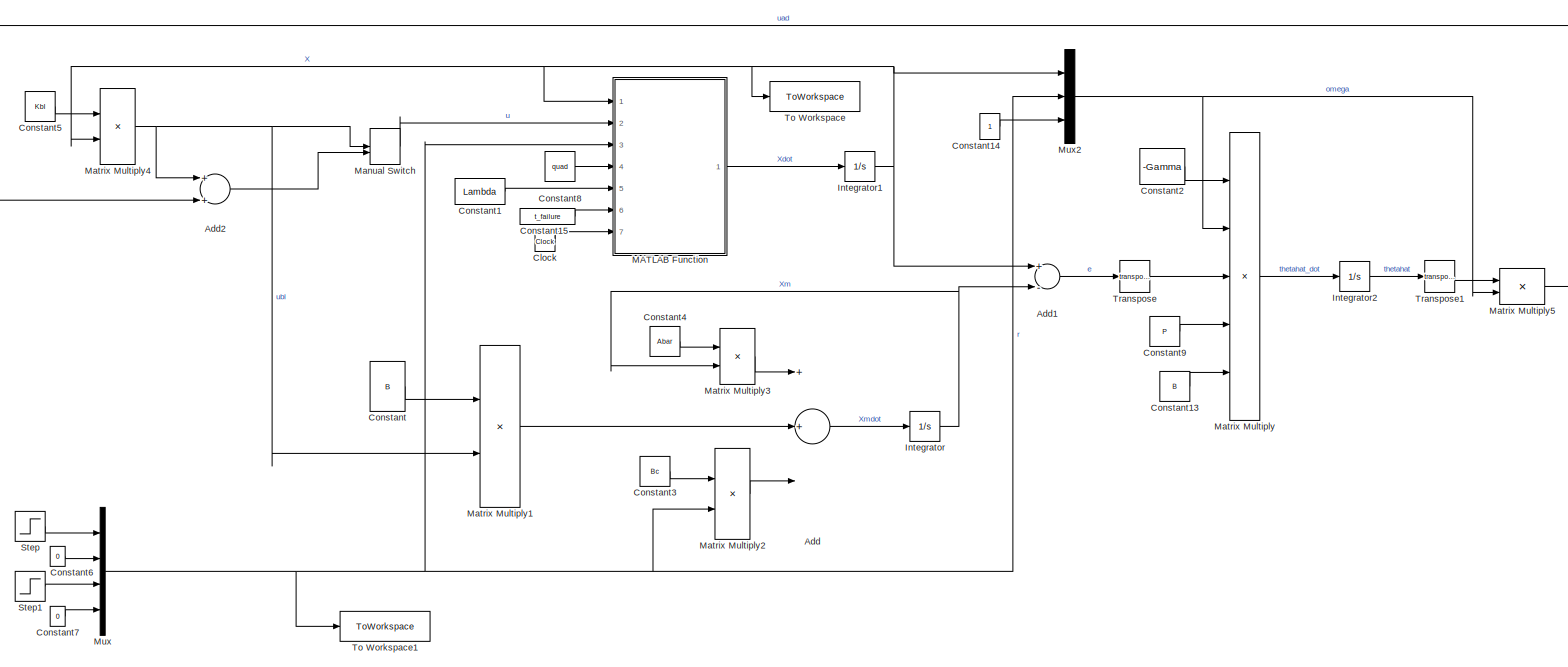
[diagram: root canvas - part 1/2, most of the canvas]
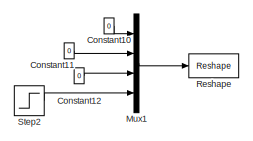
[diagram: root canvas - part 2/2, middle left region]
MODEL slx_b1ed1bd01e43
KIND model
CONFIG AbsTol = auto
CONFIG EnableMultiTasking = off
CONFIG FixedStep = auto
CONFIG MaxStep = auto
CONFIG MinStep = auto
CONFIG RelTol = 1e-3
CONFIG SampleTimeConstraint = Unconstrained
CONFIG Solver = VariableStepAuto
CONFIG SolverName = VariableStepAuto
CONFIG StartTime = 0.0
CONFIG StopTime = 18
BLOCK [Sum] Add
  InputSameDT = off
  Inputs = 3
  OutDataTypeStr = Inherit: Inherit via internal rule
  Ports = [3, 1]
  SaturateOnIntegerOverflow = off
BLOCK [Sum] Add1
  InputSameDT = off
  Inputs = +-
  OutDataTypeStr = Inherit: Inherit via internal rule
  Ports = [2, 1]
  SaturateOnIntegerOverflow = off
BLOCK [Sum] Add2
  InputSameDT = off
  OutDataTypeStr = Inherit: Inherit via internal rule
  Ports = [2, 1]
  SaturateOnIntegerOverflow = off
BLOCK [Clock] Clock
BLOCK [Constant] Constant
  Value = B
BLOCK [Constant] Constant1
  Value = Lambda
BLOCK [Constant] Constant10
  Value = 0
BLOCK [Constant] Constant11
  Value = 0
BLOCK [Constant] Constant12
  Value = 0
BLOCK [Constant] Constant13
  Value = B
BLOCK [Constant] Constant14
  VectorParams1D = off
BLOCK [Constant] Constant15
  Value = t_failure
BLOCK [Constant] Constant2
  Value = -Gamma
BLOCK [Constant] Constant3
  Value = Bc
BLOCK [Constant] Constant4
  Value = Abar
BLOCK [Constant] Constant5
  Value = Kbl
BLOCK [Constant] Constant6
  Value = 0
BLOCK [Constant] Constant7
  Value = 0
BLOCK [Constant] Constant8
  OutDataTypeStr = Bus: slBus1
  Value = quad
BLOCK [Constant] Constant9
  Value = P
BLOCK [Integrator] Integrator
  Ports = [1, 1]
BLOCK [Integrator] Integrator1
  Ports = [1, 1]
BLOCK [Integrator] Integrator2
  Ports = [1, 1]
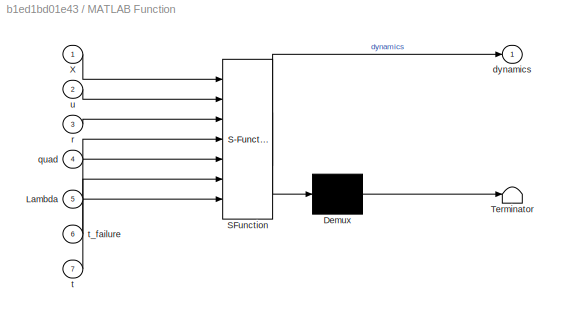
BLOCK [SubSystem] MATLAB Function
  ErrorFcn = Stateflow.Translate.translate
  PermitHierarchicalResolution = ExplicitOnly
  Ports = [7, 1]
  RequestExecContextInheritance = off
  SFBlockType = MATLAB Function
  TreatAsAtomicUnit = on
BLOCK [Demux] MATLAB Function/ Demux 
  Outputs = 1
  Ports = [1, 1]
BLOCK [S-Function] MATLAB Function/ SFunction 
  EnableBusSupport = on
  FunctionName = sf_sfun
  PortCounts = [7 2]
  Ports = [7, 2]
  SFcnIsStateOwnerBlock = off
  SFunctionDeploymentMode = off
  Tag = Stateflow S-Function 2
BLOCK [Terminator] MATLAB Function/ Terminator 
BLOCK [Inport] MATLAB Function/Lambda
  IconDisplay = Port number
  Port = 5
BLOCK [Inport] MATLAB Function/X
  IconDisplay = Port number
BLOCK [Outport] MATLAB Function/dynamics
  IconDisplay = Port number
BLOCK [Inport] MATLAB Function/quad
  IconDisplay = Port number
  Port = 4
BLOCK [Inport] MATLAB Function/r
  IconDisplay = Port number
  Port = 3
BLOCK [Inport] MATLAB Function/t
  IconDisplay = Port number
  Port = 7
BLOCK [Inport] MATLAB Function/t_failure
  IconDisplay = Port number
  Port = 6
BLOCK [Inport] MATLAB Function/u
  IconDisplay = Port number
  Port = 2
BLOCK [ManualSwitch] Manual Switch
BLOCK [Product] Matrix Multiply
  InputSameDT = off
  Inputs = 5
  Multiplication = Matrix(*)
  OutDataTypeStr = Inherit: Inherit via internal rule
  Ports = [5, 1]
  RndMeth = Floor
  SaturateOnIntegerOverflow = off
BLOCK [Product] Matrix Multiply1
  InputSameDT = off
  Multiplication = Matrix(*)
  OutDataTypeStr = Inherit: Inherit via internal rule
  Ports = [2, 1]
  RndMeth = Floor
  SaturateOnIntegerOverflow = off
BLOCK [Product] Matrix Multiply2
  InputSameDT = off
  Multiplication = Matrix(*)
  OutDataTypeStr = Inherit: Inherit via internal rule
  Ports = [2, 1]
  RndMeth = Floor
  SaturateOnIntegerOverflow = off
BLOCK [Product] Matrix Multiply3
  InputSameDT = off
  Multiplication = Matrix(*)
  OutDataTypeStr = Inherit: Inherit via internal rule
  Ports = [2, 1]
  RndMeth = Floor
  SaturateOnIntegerOverflow = off
BLOCK [Product] Matrix Multiply4
  InputSameDT = off
  Multiplication = Matrix(*)
  OutDataTypeStr = Inherit: Inherit via internal rule
  Ports = [2, 1]
  RndMeth = Floor
  SaturateOnIntegerOverflow = off
BLOCK [Product] Matrix Multiply5
  InputSameDT = off
  Multiplication = Matrix(*)
  OutDataTypeStr = Inherit: Inherit via internal rule
  Ports = [2, 1]
  RndMeth = Floor
  SaturateOnIntegerOverflow = off
BLOCK [Mux] Mux
  DisplayOption = bar
  Ports = [4, 1]
BLOCK [Mux] Mux1
  DisplayOption = bar
  Ports = [4, 1]
BLOCK [Mux] Mux2
  DisplayOption = bar
  Inputs = 3
  Ports = [3, 1]
BLOCK [Reshape] Reshape
  OutputDimensionality = Customize
  OutputDimensions = [4,1]
  Ports = [1, 1]
BLOCK [Step] Step
  SampleTime = 0
BLOCK [Step] Step1
  After = 5
  SampleTime = 0
BLOCK [Step] Step2
  After = 0.1
  SampleTime = 0
BLOCK [ToWorkspace] To Workspace
  FixptAsFi = on
  MaxDataPoints = inf
  Ports = [1]
  SampleTime = -1
  SaveFormat = Structure With Time
  VariableName = X
BLOCK [ToWorkspace] To Workspace1
  FixptAsFi = on
  MaxDataPoints = inf
  Ports = [1]
  SampleTime = -1
  SaveFormat = Structure With Time
  VariableName = r
BLOCK [Math] Transpose
  Operator = transpose
  Ports = [1, 1]
  SignedPower = off
BLOCK [Math] Transpose1
  Operator = transpose
  Ports = [1, 1]
  SignedPower = off
LINE Add1:1 -> Transpose:1
LINE Add2:1 -> Manual Switch:2
LINE Add:1 -> Integrator:1
LINE Clock:1 -> MATLAB Function:7
LINE Constant10:1 -> Mux1:1
LINE Constant11:1 -> Mux1:2
LINE Constant12:1 -> Mux1:3
LINE Constant13:1 -> Matrix Multiply:5
LINE Constant14:1 -> Mux2:3
LINE Constant15:1 -> MATLAB Function:6
LINE Constant1:1 -> MATLAB Function:5
LINE Constant2:1 -> Matrix Multiply:1
LINE Constant3:1 -> Matrix Multiply2:1
LINE Constant4:1 -> Matrix Multiply3:1
LINE Constant5:1 -> Matrix Multiply4:1
LINE Constant6:1 -> Mux:2
LINE Constant7:1 -> Mux:4
LINE Constant8:1 -> MATLAB Function:4
LINE Constant9:1 -> Matrix Multiply:4
LINE Constant:1 -> Matrix Multiply1:1
NET Integrator1:1 -> Add1:1, MATLAB Function:1, Matrix Multiply4:2, Mux2:1, To Workspace:1
LINE Integrator2:1 -> Transpose1:1
NET Integrator:1 -> Add1:2, Matrix Multiply3:2
LINE MATLAB Function:1 -> Integrator1:1
LINE Manual Switch:1 -> MATLAB Function:2
LINE Matrix Multiply1:1 -> Add:2
LINE Matrix Multiply2:1 -> Add:3
LINE Matrix Multiply3:1 -> Add:1
NET Matrix Multiply4:1 -> Add2:1, Manual Switch:1, Matrix Multiply1:2
LINE Matrix Multiply5:1 -> Add2:2
LINE Matrix Multiply:1 -> Integrator2:1
LINE Mux1:1 -> Reshape:1
NET Mux2:1 -> Matrix Multiply5:2, Matrix Multiply:2
NET Mux:1 -> MATLAB Function:3, Matrix Multiply2:2, Mux2:2, To Workspace1:1
LINE Step1:1 -> Mux:3
LINE Step2:1 -> Mux1:4
LINE Step:1 -> Mux:1
LINE Transpose1:1 -> Matrix Multiply5:1
LINE Transpose:1 -> Matrix Multiply:3
note: NET lines group one-source signal fan-out (src -> all destinations, sorted); 1:1 wires keep LINE
CHART MATLAB Function states=1 transitions=1
  STATE_LABEL 'eML_blk_kernel()'
  STATE_LABEL 'SCRIPT:\nfunction dynamics = compute_dynamics(X, u, r, quad, Lambda, t_failure, t)\n\n% Datas\ng  = quad.g;\nm  = quad.M;\nIx = quad.Ix;\nIy = quad.Iy;\nIz = quad.Iz;\nL  = quad.d;\nJr = quad.Ir;\nomegar = quad.omegar;\n\n% Dynamics\npos_x                  = X(1);\npos_y                  = X(2);\npos_z                  = X(3);\nphi                    = X(4);\ntheta                  = X(5);\npsi                    = ...<+1691ch>'
